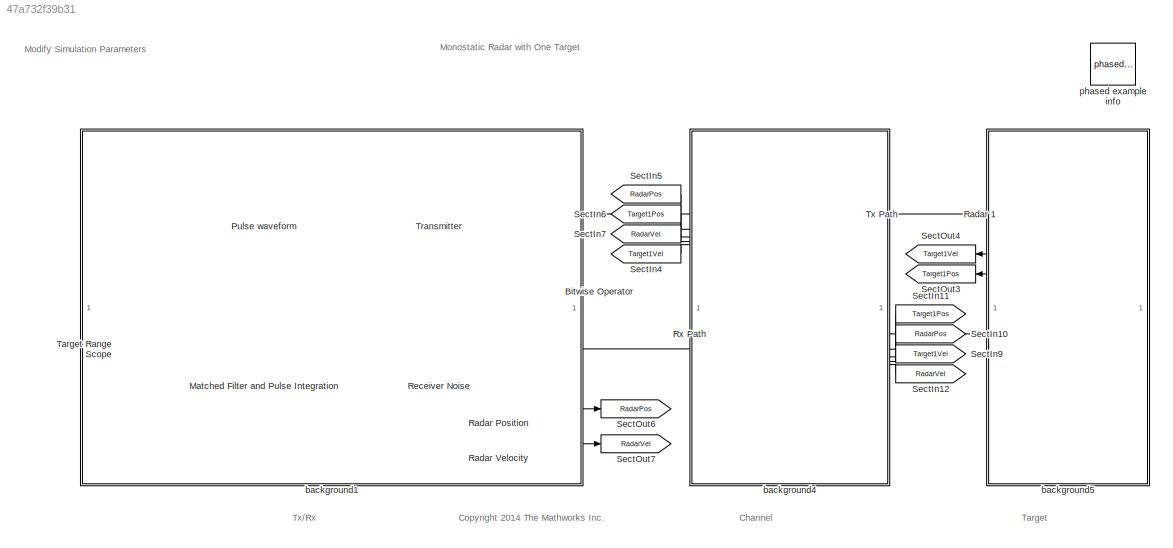
MODEL slx_47a732f39b31
KIND model
CONFIG AbsTol = auto
CONFIG EnableMultiTasking = on
CONFIG FixedStep = auto
CONFIG MaxStep = auto
CONFIG MinStep = auto
CONFIG PreLoadFcn = helperslexMonostaticRadarParam()
CONFIG RelTol = 1e-3
CONFIG SampleTimeConstraint = Unconstrained
CONFIG SolverName = FixedStepDiscrete
CONFIG StartTime = 0.0
CONFIG StopTime = 99/paramRadar.prf
BLOCK [Reference] Bitwise Operator  REF=simulink/Logic and Bit
Operations/Bitwise
Operator
  NameLocation = left
  SourceBlock = simulink/Logic and Bit\nOperations/Bitwise\nOperator
  SourceType = Bitwise Operator
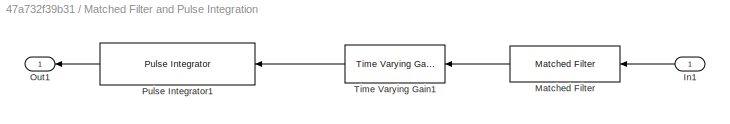
BLOCK [SubSystem] Matched Filter and Pulse Integration
BLOCK [Inport] Matched Filter and Pulse Integration/In1
BLOCK [Reference] Matched Filter and Pulse Integration/Matched Filter  REF=phaseddetectlib/Matched Filter
  SourceBlock = phaseddetectlib/Matched Filter
  SourceType = phased.internal.SimulinkMatchedFilter
BLOCK [Outport] Matched Filter and Pulse Integration/Out1
  VectorParamsAs1DForOutWhenUnconnected = off
BLOCK [Reference] Matched Filter and Pulse Integration/Pulse Integrator1  REF=phaseddetectlib/Pulse Integrator
  SourceBlock = phaseddetectlib/Pulse Integrator
  SourceType = Pulse Integrator
BLOCK [Reference] Matched Filter and Pulse Integration/Time Varying Gain1  REF=phaseddetectlib/Time Varying Gain
  SourceBlock = phaseddetectlib/Time Varying Gain
  SourceType = phased.TimeVaryingGain
BLOCK [Reference] Pulse waveform  REF=phasedwavlib/Rectangular Waveform
  SourceBlock = phasedwavlib/Rectangular Waveform
  SourceType = phased.internal.SimulinkRectangularWaveform
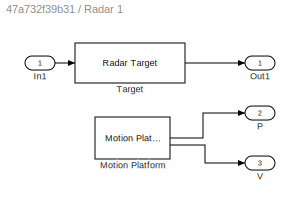
BLOCK [SubSystem] Radar 1
BLOCK [Inport] Radar 1/In1
BLOCK [Reference] Radar 1/Motion Platform  REF=phasedenvlib/Motion Platform
  SourceBlock = phasedenvlib/Motion Platform
  SourceType = phased.internal.SimulinkPlatform
BLOCK [Outport] Radar 1/Out1
  VectorParamsAs1DForOutWhenUnconnected = off
BLOCK [Outport] Radar 1/P
  Port = 2
  VectorParamsAs1DForOutWhenUnconnected = off
BLOCK [Reference] Radar 1/Target  REF=phasedenvlib/Radar Target
  SourceBlock = phasedenvlib/Radar Target
  SourceType = phased.RadarTarget
BLOCK [Outport] Radar 1/V
  Port = 3
  VectorParamsAs1DForOutWhenUnconnected = off
BLOCK [Constant] Radar Position
  SampleTime = 1/paramRadar.prf
  Value = [ 0; 0; 0 ]
BLOCK [Constant] Radar Velocity
  SampleTime = 1/paramRadar.prf
  Value = [ 0; 0; 0 ]
BLOCK [Reference] Receiver Noise  REF=phasedtxrxlib/Receiver Preamp
  SourceBlock = phasedtxrxlib/Receiver Preamp
  SourceType = phased.internal.SimulinkReceiverPreamp
BLOCK [Reference] Rx Path  REF=phasedenvlib/Free Space
  SourceBlock = phasedenvlib/Free Space
  SourceType = phased.FreeSpace
BLOCK [From] SectIn10
  GotoTag = RadarPos
BLOCK [From] SectIn11
  GotoTag = Target1Pos
BLOCK [From] SectIn12
  GotoTag = RadarVel
BLOCK [From] SectIn4
  GotoTag = Target1Vel
  NameLocation = top
BLOCK [From] SectIn5
  GotoTag = RadarPos
  NameLocation = top
BLOCK [From] SectIn6
  GotoTag = Target1Pos
  NameLocation = top
BLOCK [From] SectIn7
  GotoTag = RadarVel
  NameLocation = top
BLOCK [From] SectIn9
  GotoTag = Target1Vel
BLOCK [Goto] SectOut3
  GotoTag = Target1Pos
  NameLocation = top
BLOCK [Goto] SectOut4
  GotoTag = Target1Vel
  NameLocation = top
BLOCK [Goto] SectOut6
  GotoTag = RadarPos
BLOCK [Goto] SectOut7
  GotoTag = RadarVel
BLOCK [ArrayPlot] Target Range Scope
  AxesScaling = Manual
  GraphicalSettings = {"Style":{"BackgroundColor":[0.12941176470588237,0.12941176470588237,0.12941176470588237],"AxesColor":[0.070588235294117646,0.070588235294117646,0.070588235294117646],"LabelsColor":[0.85098039215686272,0.85098039215686272,0.85098039215686272],"PreserveColors":false,"Visible":true,"LineStyle":["-"],"LineWidth":1.5,"BarWidth":0.9,"LineColor":[1,0.90980392156862744,0.39215686274509803],"LineFaceAlpha...<+83ch>
  MaximizeAxes = Off
  PlotType = Line
  SampleIncrement = paramRadar.metersPerSample
  ScopeFrameLocation = window
  Title = Radar Return
  WasSavedAsWebScope = on
  WindowPosition = [1.000000,41.000000,1536.000000,801.000000,]
  XLabel = Range (m)
  XOffset = paramRadar.rangeOffset
  YLimits = [-4.2427e-08,1.7395e-06]
BLOCK [Reference] Transmitter  REF=phasedtxrxlib/Transmitter
  SourceBlock = phasedtxrxlib/Transmitter
  SourceType = phased.internal.SimulinkTransmitter
BLOCK [Reference] Tx Path  REF=phasedenvlib/Free Space
  SourceBlock = phasedenvlib/Free Space
  SourceType = phased.FreeSpace
BLOCK [SubSystem] background1
  Description = Jammer
BLOCK [SubSystem] background4
  Description = Jammer
BLOCK [SubSystem] background5
  Description = Jammer
BLOCK [Reference] phased example info  REF=phasedmisclib/phased example info
  SourceBlock = phasedmisclib/phased example info
ANNOTATION (root): Monostatic Radar with One Target
ANNOTATION (root): Channel
ANNOTATION (root): <copyright redacted>
ANNOTATION (root): Modify Simulation Parameters
ANNOTATION (root): Target
ANNOTATION (root): Tx/Rx
LINE Bitwise Operator:1 -> Receiver Noise:2
LINE Matched Filter and Pulse Integration/In1:1 -> Matched Filter and Pulse Integration/Matched Filter:1
LINE Matched Filter and Pulse Integration/Matched Filter:1 -> Matched Filter and Pulse Integration/Time Varying Gain1:1
LINE Matched Filter and Pulse Integration/Pulse Integrator1:1 -> Matched Filter and Pulse Integration/Out1:1
LINE Matched Filter and Pulse Integration/Time Varying Gain1:1 -> Matched Filter and Pulse Integration/Pulse Integrator1:1
LINE Matched Filter and Pulse Integration:1 -> Target Range Scope:1
LINE Pulse waveform:1 -> Transmitter:1
LINE Radar 1/In1:1 -> Radar 1/Target:1
LINE Radar 1/Motion Platform:1 -> Radar 1/P:1
LINE Radar 1/Motion Platform:2 -> Radar 1/V:1
LINE Radar 1/Target:1 -> Radar 1/Out1:1
LINE Radar 1:1 -> Rx Path:1
LINE Radar 1:2 -> SectOut3:1
LINE Radar 1:3 -> SectOut4:1
LINE Radar Position:1 -> SectOut6:1
LINE Radar Velocity:1 -> SectOut7:1
LINE Receiver Noise:1 -> Matched Filter and Pulse Integration:1
LINE Rx Path:1 -> Receiver Noise:1
LINE SectIn10:1 -> Rx Path:3
LINE SectIn11:1 -> Rx Path:2
LINE SectIn12:1 -> Rx Path:5
LINE SectIn4:1 -> Tx Path:5
LINE SectIn5:1 -> Tx Path:2
LINE SectIn6:1 -> Tx Path:3
LINE SectIn7:1 -> Tx Path:4
LINE SectIn9:1 -> Rx Path:4
LINE Transmitter:1 -> Tx Path:1
LINE Transmitter:2 -> Bitwise Operator:1
LINE Tx Path:1 -> Radar 1:1
